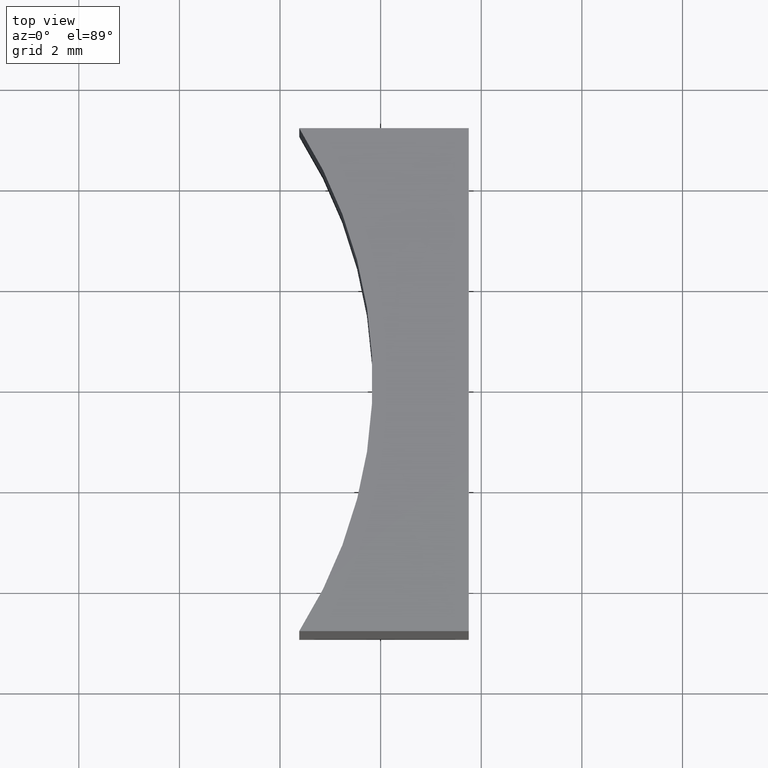
[diagram: clean part render]
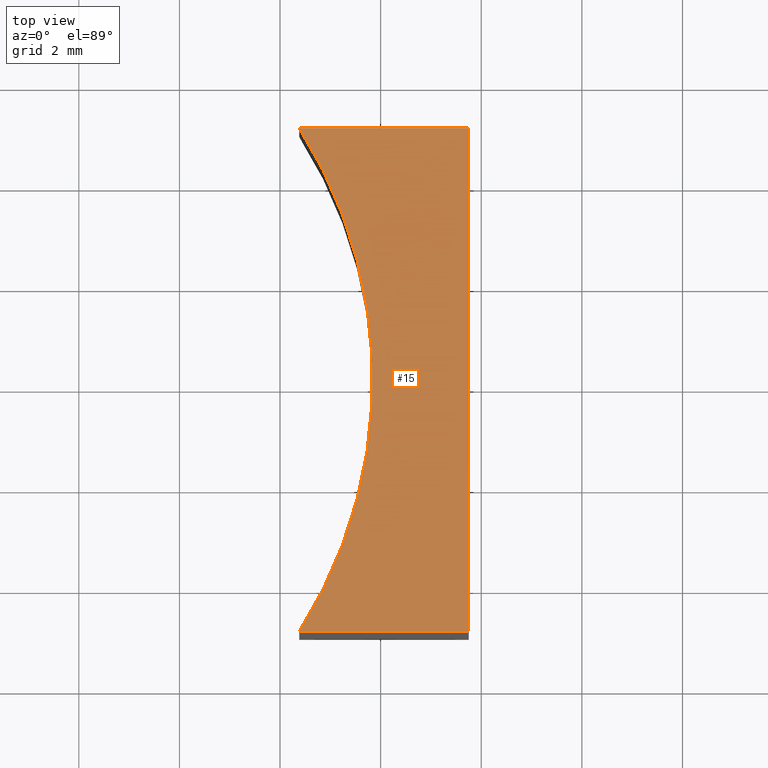
[diagram: same view with one face highlighted and labeled with its STEP entity id]
A machine part, top view. The second image highlights one B-rep face of the part: STEP entity #15.
In plain terms, the highlighted planar face has unit normal (0, 0, 1).
Its self-contained STEP definition (entity closure, byte-faithful):
#7 = EDGE_CURVE ( 'NONE', #90, #237, #205, .T. ) ;
#9 = CARTESIAN_POINT ( 'NONE',  ( -3.618624628560199508, -4.927980699070814374, 10.00000000000000000 ) ) ;
#12 = DIRECTION ( 'NONE',  ( 1.000000000000000000, 0.000000000000000000, 0.000000000000000000 ) ) ;
#15 = ADVANCED_FACE ( 'NONE', ( #63 ), #109, .T. ) ;
#28 = DIRECTION ( 'NONE',  ( -1.192622389734054877E-16, 1.000000000000000000, -0.000000000000000000 ) ) ;
#39 = DIRECTION ( 'NONE',  ( 1.000000000000000000, 0.000000000000000000, -0.000000000000000000 ) ) ;
#41 = ORIENTED_EDGE ( 'NONE', *, *, #129, .T. ) ;
#59 = LINE ( 'NONE', #125, #179 ) ;
#61 = CARTESIAN_POINT ( 'NONE',  ( -3.618624628560200840, 5.072019300929185626, 10.00000000000000000 ) ) ;
#63 = FACE_OUTER_BOUND ( 'NONE', #239, .T. ) ;
#77 = DIRECTION ( 'NONE',  ( 0.000000000000000000, 0.000000000000000000, 1.000000000000000000 ) ) ;
#81 = VERTEX_POINT ( 'NONE', #140 ) ;
#82 = CARTESIAN_POINT ( 'NONE',  ( -3.618624628560199508, -4.927980699070814374, 10.00000000000000000 ) ) ;
#88 = VECTOR ( 'NONE', #112, 1000.000000000000000 ) ;
#90 = VERTEX_POINT ( 'NONE', #61 ) ;
#109 = PLANE ( 'NONE',  #200 ) ;
#111 = ORIENTED_EDGE ( 'NONE', *, *, #212, .T. ) ;
#112 = DIRECTION ( 'NONE',  ( -1.000000000000000000, -0.000000000000000000, -0.000000000000000000 ) ) ;
#120 = VECTOR ( 'NONE', #12, 1000.000000000000000 ) ;
#124 = CARTESIAN_POINT ( 'NONE',  ( -3.618624628560200840, 5.072019300929185626, 10.00000000000000000 ) ) ;
#125 = CARTESIAN_POINT ( 'NONE',  ( -0.2486246285602006501, 5.072019300929185626, 10.00000000000000000 ) ) ;
#129 = EDGE_CURVE ( 'NONE', #81, #90, #159, .T. ) ;
#134 = LINE ( 'NONE', #82, #120 ) ;
#140 = CARTESIAN_POINT ( 'NONE',  ( -0.2486246285602006501, 5.072019300929185626, 10.00000000000000000 ) ) ;
#147 = DIRECTION ( 'NONE',  ( 1.000000000000000000, 0.000000000000000000, 0.000000000000000000 ) ) ;
#159 = LINE ( 'NONE', #124, #88 ) ;
#161 = ORIENTED_EDGE ( 'NONE', *, *, #173, .T. ) ;
#162 = AXIS2_PLACEMENT_3D ( 'NONE', #214, #186, #147 ) ;
#164 = CARTESIAN_POINT ( 'NONE',  ( -11.46018059660633703, 0.07201930092918462645, 10.00000000000000000 ) ) ;
#173 = EDGE_CURVE ( 'NONE', #230, #81, #59, .T. ) ;
#179 = VECTOR ( 'NONE', #28, 1000.000000000000000 ) ;
#186 = DIRECTION ( 'NONE',  ( -0.000000000000000000, -0.000000000000000000, -1.000000000000000000 ) ) ;
#200 = AXIS2_PLACEMENT_3D ( 'NONE', #164, #77, #39 ) ;
#205 = CIRCLE ( 'NONE', #162, 9.299999999999998934 ) ;
#207 = CARTESIAN_POINT ( 'NONE',  ( -0.2486246285601994566, -4.927980699070814374, 10.00000000000000000 ) ) ;
#211 = ORIENTED_EDGE ( 'NONE', *, *, #7, .T. ) ;
#212 = EDGE_CURVE ( 'NONE', #237, #230, #134, .T. ) ;
#214 = CARTESIAN_POINT ( 'NONE',  ( -11.46018059660633703, 0.07201930092918462645, 10.00000000000000000 ) ) ;
#230 = VERTEX_POINT ( 'NONE', #207 ) ;
#237 = VERTEX_POINT ( 'NONE', #9 ) ;
#239 = EDGE_LOOP ( 'NONE', ( #211, #111, #161, #41 ) ) ;